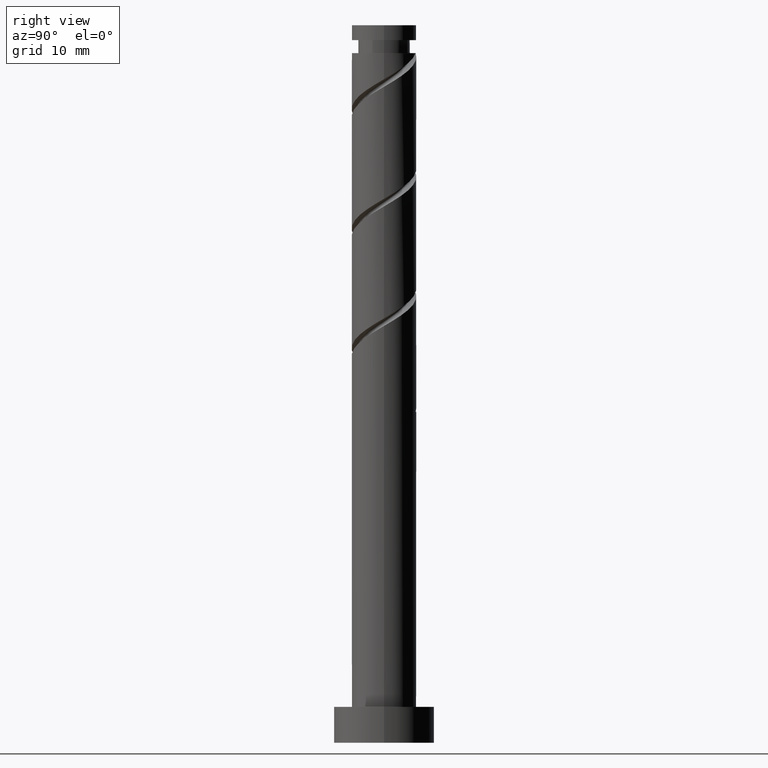
[diagram: clean part render]
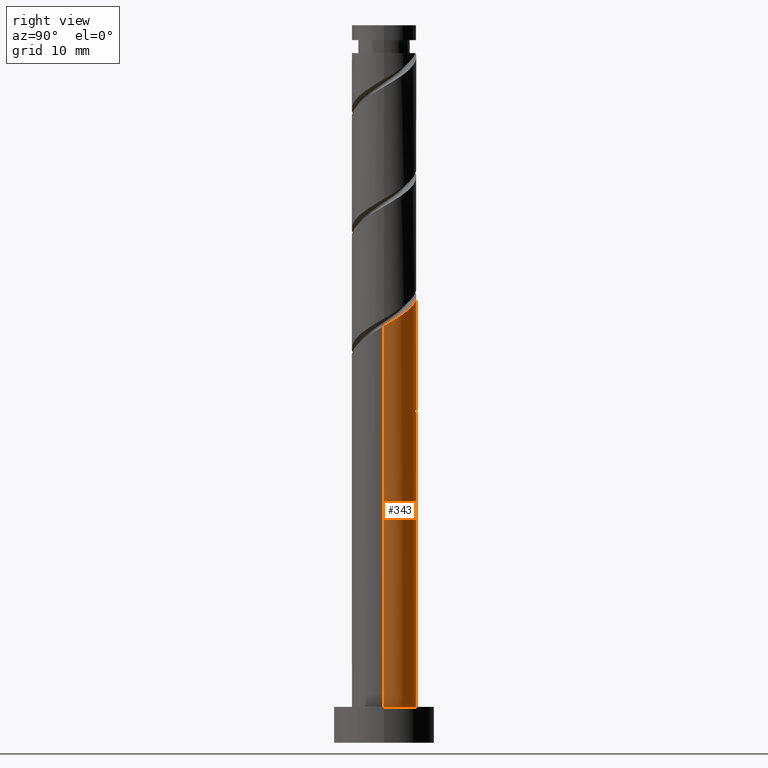
[diagram: same view with one face highlighted and labeled with its STEP entity id]
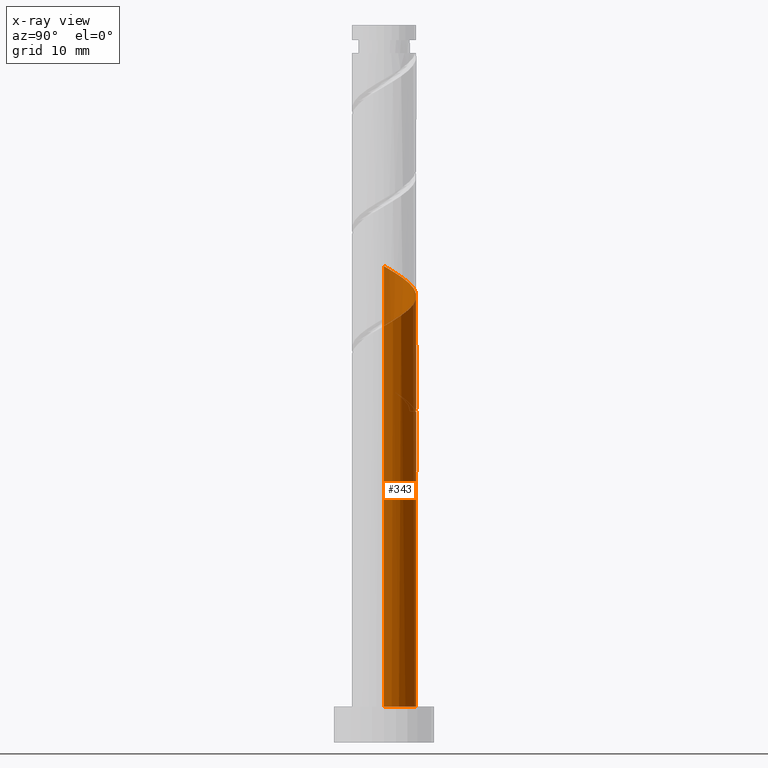
[diagram: x-ray of the same camera — body ghosted, the highlighted face saturated]
A machine part, right view. The second image highlights one B-rep face of the part: STEP entity #343.
The next image is the same camera in x-ray: the body ghosted, the highlighted face saturated — about 0% of this face is hidden behind the body in this view.
In plain terms, the highlighted cylindrical surface (edge-blend (fillet) strip) has radius 4.5 mm, axis along (-0, -0, -1).
Its self-contained STEP definition (entity closure, byte-faithful):
#6 = CARTESIAN_POINT ( 'NONE',  ( 4.500000000000000888, 5.510910596163089556E-16, 100.0000000000000000 ) ) ;
#10 = EDGE_LOOP ( 'NONE', ( #692, #1237, #136, #330, #875, #216, #590, #111 ) ) ;
#27 = CARTESIAN_POINT ( 'NONE',  ( 0.1178867084716278268, 4.567898817565077429, 46.57607867340825436 ) ) ;
#28 = CARTESIAN_POINT ( 'NONE',  ( -4.500000000000000888, 0.000000000000000000, 100.0000000000000000 ) ) ;
#51 = CARTESIAN_POINT ( 'NONE',  ( 2.845882304290352938, 3.574989621477774104, 60.46496756229711877 ) ) ;
#68 = CARTESIAN_POINT ( 'NONE',  ( 0.6668247148848071015, 4.450319628927662308, 61.85385645118604003 ) ) ;
#111 = ORIENTED_EDGE ( 'NONE', *, *, #1104, .F. ) ;
#118 = VERTEX_POINT ( 'NONE', #595 ) ;
#131 = AXIS2_PLACEMENT_3D ( 'NONE', #1125, #778, #553 ) ;
#136 = ORIENTED_EDGE ( 'NONE', *, *, #593, .T. ) ;
#158 = CYLINDRICAL_SURFACE ( 'NONE', #877, 4.500000000000000888 ) ;
#164 = DIRECTION ( 'NONE',  ( -0.000000000000000000, -0.000000000000000000, -1.000000000000000000 ) ) ;
#213 = CARTESIAN_POINT ( 'NONE',  ( -2.845882304290348053, 3.574989621477770552, 48.42793052526010911 ) ) ;
#216 = ORIENTED_EDGE ( 'NONE', *, *, #934, .T. ) ;
#229 = CARTESIAN_POINT ( 'NONE',  ( -4.500000000000006217, 2.860812093730147383E-15, 49.74892748878986026 ) ) ;
#249 = VECTOR ( 'NONE', #1185, 1000.000000000000000 ) ;
#250 = CARTESIAN_POINT ( 'NONE',  ( -4.500000000000000888, 0.000000000000000000, 100.0000000000000000 ) ) ;
#253 = EDGE_CURVE ( 'NONE', #908, #1118, #418, .T. ) ;
#276 = CARTESIAN_POINT ( 'NONE',  ( 4.500000000000006217, 0.05805753449409344069, 58.11627819605557477 ) ) ;
#282 = CARTESIAN_POINT ( 'NONE',  ( 0.000000000000000000, 0.000000000000000000, 46.11311571044531377 ) ) ;
#283 = CARTESIAN_POINT ( 'NONE',  ( -3.026495220174906464, 3.423437390373191391, 64.16867126600084248 ) ) ;
#299 = VERTEX_POINT ( 'NONE', #396 ) ;
#324 = CARTESIAN_POINT ( 'NONE',  ( -0.6668247148848021055, 4.450319628927657867, 47.03904163637120206 ) ) ;
#330 = ORIENTED_EDGE ( 'NONE', *, *, #1296, .F. ) ;
#343 = ADVANCED_FACE ( 'NONE', ( #1078 ), #158, .T. ) ;
#385 = CARTESIAN_POINT ( 'NONE',  ( -1.673090678320290570, 4.252101182434927296, 46.57607867340826147 ) ) ;
#387 = DIRECTION ( 'NONE',  ( -1.000000000000000000, 0.000000000000000000, 0.000000000000000000 ) ) ;
#396 = CARTESIAN_POINT ( 'NONE',  ( -4.500000000000000888, 0.000000000000000000, 5.000000000000000000 ) ) ;
#404 = CARTESIAN_POINT ( 'NONE',  ( -4.014859772164073526, 2.181856524477582049, 65.09459719192676630 ) ) ;
#414 = CARTESIAN_POINT ( 'NONE',  ( 2.148709221265795222, 3.953865030884009091, 60.92793052526010911 ) ) ;
#417 = CIRCLE ( 'NONE', #1453, 4.500000000000000888 ) ;
#418 =( BOUNDED_CURVE ( )  B_SPLINE_CURVE ( 2, ( #642, #385, #1425, #500, #1106, #967, #529, #997, #1310 ),
 .UNSPECIFIED., .F., .T. ) 
 B_SPLINE_CURVE_WITH_KNOTS ( ( 3, 2, 2, 2, 3 ),
 ( 0.000000000000000000, 0.01388888888888883955, 0.02777777777777779011, 0.04166666666666662966, 0.05452480538552902795 ),
 .UNSPECIFIED. ) 
 CURVE ( )  GEOMETRIC_REPRESENTATION_ITEM ( )  RATIONAL_B_SPLINE_CURVE ( ( 0.9090909090909125023, 0.8952797754656471874, 0.9090909090909125023, 0.8952797754656471874, 0.9090909090909125023, 0.8952797754656471874, 0.9090909090909125023, 0.8963047551055872697, 0.9071930855141248085 ) ) 
 REPRESENTATION_ITEM ( '' )  );
#445 = VERTEX_POINT ( 'NONE', #623 ) ;
#463 = CARTESIAN_POINT ( 'NONE',  ( 0.8954886933959594897, 4.410000000000001030, 46.11311571044527824 ) ) ;
#474 = LINE ( 'NONE', #250, #558 ) ;
#486 = EDGE_CURVE ( 'NONE', #1288, #600, #1279, .T. ) ;
#500 = CARTESIAN_POINT ( 'NONE',  ( -3.026495220174906464, 3.423437390373191391, 47.50200459933417108 ) ) ;
#525 = CARTESIAN_POINT ( 'NONE',  ( 3.371427683991400581, 2.980515957282638961, 60.00200459933419239 ) ) ;
#529 = CARTESIAN_POINT ( 'NONE',  ( -4.266916377387358850, 1.429484042717369174, 48.89089348822307102 ) ) ;
#532 = CARTESIAN_POINT ( 'NONE',  ( -0.8954886933959582684, 4.410000000000006359, 62.77978237711197096 ) ) ;
#553 = DIRECTION ( 'NONE',  ( 1.000000000000000000, 0.000000000000000000, 0.000000000000000000 ) ) ;
#558 = VECTOR ( 'NONE', #1061, 1000.000000000000000 ) ;
#590 = ORIENTED_EDGE ( 'NONE', *, *, #839, .F. ) ;
#592 = LINE ( 'NONE', #28, #249 ) ;
#593 = EDGE_CURVE ( 'NONE', #118, #299, #708, .T. ) ;
#595 = CARTESIAN_POINT ( 'NONE',  ( 4.500000000000000888, 5.510910596163089556E-16, 5.000000000000000000 ) ) ;
#600 = VERTEX_POINT ( 'NONE', #1224 ) ;
#614 = CARTESIAN_POINT ( 'NONE',  ( -1.673090678320290570, 4.252101182434927296, 63.24274534007490445 ) ) ;
#623 = CARTESIAN_POINT ( 'NONE',  ( -4.499999999999999112, -1.785206502353810970E-15, 50.81063726543402481 ) ) ;
#637 = CARTESIAN_POINT ( 'NONE',  ( 4.500000000000006217, -2.950445893011510033E-15, 58.08226082212320307 ) ) ;
#642 = CARTESIAN_POINT ( 'NONE',  ( -0.8954886933959579354, 4.410000000000006359, 46.11311571044529245 ) ) ;
#669 =( BOUNDED_CURVE ( )  B_SPLINE_CURVE ( 2, ( #1056, #1263, #820, #1240, #933, #678, #811, #213, #713, #1368, #324, #27, #463 ),
 .UNSPECIFIED., .F., .T. ) 
 B_SPLINE_CURVE_WITH_KNOTS ( ( 3, 2, 2, 2, 2, 2, 3 ),
 ( 0.9295248053855291737, 0.9305555555555555802, 0.9444444444444444198, 0.9583333333333333703, 0.9722222222222222099, 0.9861111111111111605, 1.000000000000000000 ),
 .UNSPECIFIED. ) 
 CURVE ( )  GEOMETRIC_REPRESENTATION_ITEM ( )  RATIONAL_B_SPLINE_CURVE ( ( 0.9071930855141192573, 0.9080659294509668689, 0.9090909090909068402, 0.8952797754656413032, 0.9090909090909068402, 0.8952797754656413032, 0.9090909090909068402, 0.8952797754656413032, 0.9090909090909068402, 0.8952797754656413032, 0.9090909090909068402, 0.8952797754656413032, 0.9090909090909068402 ) ) 
 REPRESENTATION_ITEM ( '' )  );
#678 = CARTESIAN_POINT ( 'NONE',  ( -3.896973063692442452, 2.386042293087498933, 49.35385645118603293 ) ) ;
#692 = ORIENTED_EDGE ( 'NONE', *, *, #486, .F. ) ;
#708 = CIRCLE ( 'NONE', #131, 4.500000000000000888 ) ;
#713 = CARTESIAN_POINT ( 'NONE',  ( -2.148709221265789893, 3.953865030884003318, 47.96496756229714009 ) ) ;
#737 = CARTESIAN_POINT ( 'NONE',  ( 4.187502211054296097, 1.647672671502275366, 59.07607867340824725 ) ) ;
#744 = CARTESIAN_POINT ( 'NONE',  ( 1.451536138241237506, 4.332740440290242745, 61.39089348822306391 ) ) ;
#778 = DIRECTION ( 'NONE',  ( 0.000000000000000000, 0.000000000000000000, 1.000000000000000000 ) ) ;
#809 = VECTOR ( 'NONE', #1397, 1000.000000000000000 ) ;
#811 = CARTESIAN_POINT ( 'NONE',  ( -3.371427683991394364, 2.980515957282634076, 48.89089348822306391 ) ) ;
#820 = CARTESIAN_POINT ( 'NONE',  ( -4.498502170513387632, 0.1160957444799491783, 50.74274534007490445 ) ) ;
#839 = EDGE_CURVE ( 'NONE', #445, #1145, #669, .T. ) ;
#862 = CARTESIAN_POINT ( 'NONE',  ( 4.498502170513392073, 0.1160957444799486371, 58.15015274748233054 ) ) ;
#868 = CARTESIAN_POINT ( 'NONE',  ( -4.266916377387358850, 1.429484042717369174, 65.55756015488974242 ) ) ;
#875 = ORIENTED_EDGE ( 'NONE', *, *, #253, .F. ) ;
#877 = AXIS2_PLACEMENT_3D ( 'NONE', #1342, #164, #387 ) ;
#908 = VERTEX_POINT ( 'NONE', #917 ) ;
#917 = CARTESIAN_POINT ( 'NONE',  ( -0.8954886933959579354, 4.410000000000006359, 46.11311571044528534 ) ) ;
#933 = CARTESIAN_POINT ( 'NONE',  ( -4.187502211054288992, 1.647672671502274699, 49.81681941414898773 ) ) ;
#934 = EDGE_CURVE ( 'NONE', #908, #1145, #417, .T. ) ;
#944 = LINE ( 'NONE', #6, #809 ) ;
#967 = CARTESIAN_POINT ( 'NONE',  ( -4.014859772164073526, 2.181856524477582049, 48.42793052526010911 ) ) ;
#997 = CARTESIAN_POINT ( 'NONE',  ( -4.500000000000004441, 0.7337446731920587162, 49.31900797642424550 ) ) ;
#1021 = CARTESIAN_POINT ( 'NONE',  ( 0.8954886933959594897, 4.410000000000001030, 46.11311571044528534 ) ) ;
#1056 = CARTESIAN_POINT ( 'NONE',  ( -4.499999999999999112, -1.785206502353810970E-15, 50.81063726543402481 ) ) ;
#1061 = DIRECTION ( 'NONE',  ( -0.000000000000000000, -0.000000000000000000, -1.000000000000000000 ) ) ;
#1078 = FACE_OUTER_BOUND ( 'NONE', #10, .T. ) ;
#1085 = EDGE_CURVE ( 'NONE', #1288, #118, #944, .T. ) ;
#1102 = CARTESIAN_POINT ( 'NONE',  ( 3.896973063692447781, 2.386042293087498489, 59.53904163637119495 ) ) ;
#1104 = EDGE_CURVE ( 'NONE', #600, #445, #474, .T. ) ;
#1106 = CARTESIAN_POINT ( 'NONE',  ( -3.520677496169491771, 2.802646957425388496, 47.96496756229714720 ) ) ;
#1108 = CARTESIAN_POINT ( 'NONE',  ( 4.478031358416139973, 0.9093030499170504655, 58.61311571044528534 ) ) ;
#1118 = VERTEX_POINT ( 'NONE', #229 ) ;
#1125 = CARTESIAN_POINT ( 'NONE',  ( 0.000000000000000000, 0.000000000000000000, 5.000000000000000000 ) ) ;
#1145 = VERTEX_POINT ( 'NONE', #1021 ) ;
#1185 = DIRECTION ( 'NONE',  ( -0.000000000000000000, -0.000000000000000000, -1.000000000000000000 ) ) ;
#1192 = CARTESIAN_POINT ( 'NONE',  ( -0.1178867084716271330, 4.567898817565084535, 62.31681941414898773 ) ) ;
#1214 = CARTESIAN_POINT ( 'NONE',  ( -4.500000000000006217, 2.860812093730146988E-15, 66.41559415545653167 ) ) ;
#1224 = CARTESIAN_POINT ( 'NONE',  ( -4.500000000000006217, 2.860812093730147383E-15, 66.41559415545653167 ) ) ;
#1237 = ORIENTED_EDGE ( 'NONE', *, *, #1085, .T. ) ;
#1240 = CARTESIAN_POINT ( 'NONE',  ( -4.478031358416136420, 0.9093030499170511316, 50.27978237711194964 ) ) ;
#1263 = CARTESIAN_POINT ( 'NONE',  ( -4.500000000000000000, 0.05805753449410055306, 50.77661989150166733 ) ) ;
#1279 =( BOUNDED_CURVE ( )  B_SPLINE_CURVE ( 2, ( #637, #276, #862, #1108, #737, #1102, #525, #51, #414, #744, #68, #1192, #532, #614, #1314, #283, #1443, #404, #868, #1335, #1214 ),
 .UNSPECIFIED., .F., .T. ) 
 B_SPLINE_CURVE_WITH_KNOTS ( ( 3, 2, 2, 2, 2, 2, 2, 2, 2, 2, 3 ),
 ( 0.1795248053855290626, 0.1805555555555555802, 0.1944444444444444198, 0.2083333333333333703, 0.2222222222222222099, 0.2361111111111111605, 0.2500000000000000000, 0.2638888888888888395, 0.2777777777777777901, 0.2916666666666666297, 0.3045248053855290626 ),
 .UNSPECIFIED. ) 
 CURVE ( )  GEOMETRIC_REPRESENTATION_ITEM ( )  RATIONAL_B_SPLINE_CURVE ( ( 0.9071930855141248085, 0.9080659294509724200, 0.9090909090909125023, 0.8952797754656471874, 0.9090909090909125023, 0.8952797754656471874, 0.9090909090909125023, 0.8952797754656471874, 0.9090909090909125023, 0.8952797754656471874, 0.9090909090909125023, 0.8952797754656471874, 0.9090909090909125023, 0.8952797754656471874, 0.9090909090909125023, 0.8952797754656471874, 0.9090909090909125023, 0.8952797754656471874, 0.9090909090909125023, 0.8963047551055872697, 0.9071930855141248085 ) ) 
 REPRESENTATION_ITEM ( '' )  );
#1288 = VERTEX_POINT ( 'NONE', #1417 ) ;
#1296 = EDGE_CURVE ( 'NONE', #1118, #299, #592, .T. ) ;
#1310 = CARTESIAN_POINT ( 'NONE',  ( -4.500000000000006217, 2.860812093730146988E-15, 49.74892748878986026 ) ) ;
#1314 = CARTESIAN_POINT ( 'NONE',  ( -2.349792949247598628, 3.837769286404060676, 63.70570830303790189 ) ) ;
#1335 = CARTESIAN_POINT ( 'NONE',  ( -4.500000000000005329, 0.7337446731920567178, 65.98567464309090269 ) ) ;
#1342 = CARTESIAN_POINT ( 'NONE',  ( 0.000000000000000000, 0.000000000000000000, 100.0000000000000000 ) ) ;
#1368 = CARTESIAN_POINT ( 'NONE',  ( -1.451536138241231511, 4.332740440290237416, 47.50200459933417818 ) ) ;
#1397 = DIRECTION ( 'NONE',  ( -0.000000000000000000, -0.000000000000000000, -1.000000000000000000 ) ) ;
#1408 = DIRECTION ( 'NONE',  ( 0.000000000000000000, 1.000000000000000000, -7.709882115452474222E-15 ) ) ;
#1417 = CARTESIAN_POINT ( 'NONE',  ( 4.500000000000006217, -2.950445893011510033E-15, 58.08226082212320307 ) ) ;
#1425 = CARTESIAN_POINT ( 'NONE',  ( -2.349792949247598628, 3.837769286404060676, 47.03904163637122338 ) ) ;
#1426 = DIRECTION ( 'NONE',  ( -3.423875456688416414E-30, -7.709882115452472644E-15, -1.000000000000000000 ) ) ;
#1443 = CARTESIAN_POINT ( 'NONE',  ( -3.520677496169491771, 2.802646957425388496, 64.63163422896380439 ) ) ;
#1453 = AXIS2_PLACEMENT_3D ( 'NONE', #282, #1426, #1408 ) ;